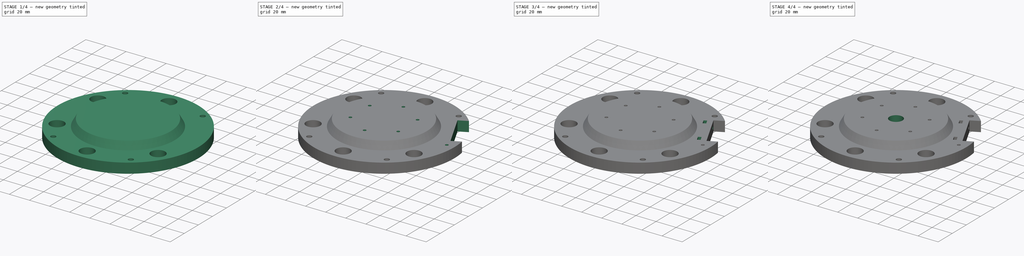
[diagram: build sequence overview — one tinted view per stage of 4, left to right]
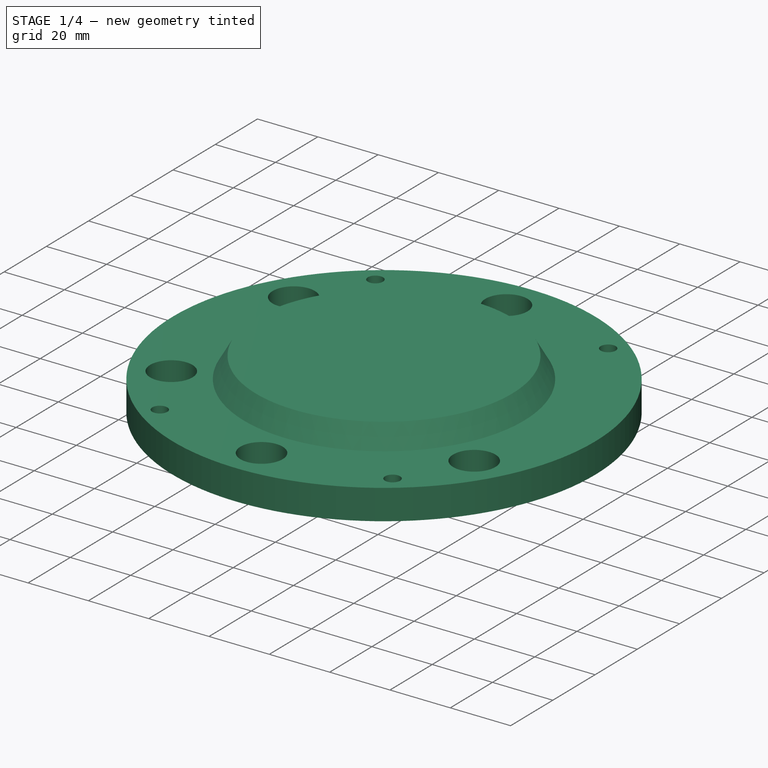
[diagram: stage 1 of 4 — iso view after this stage's code; geometry added in this stage tinted green]
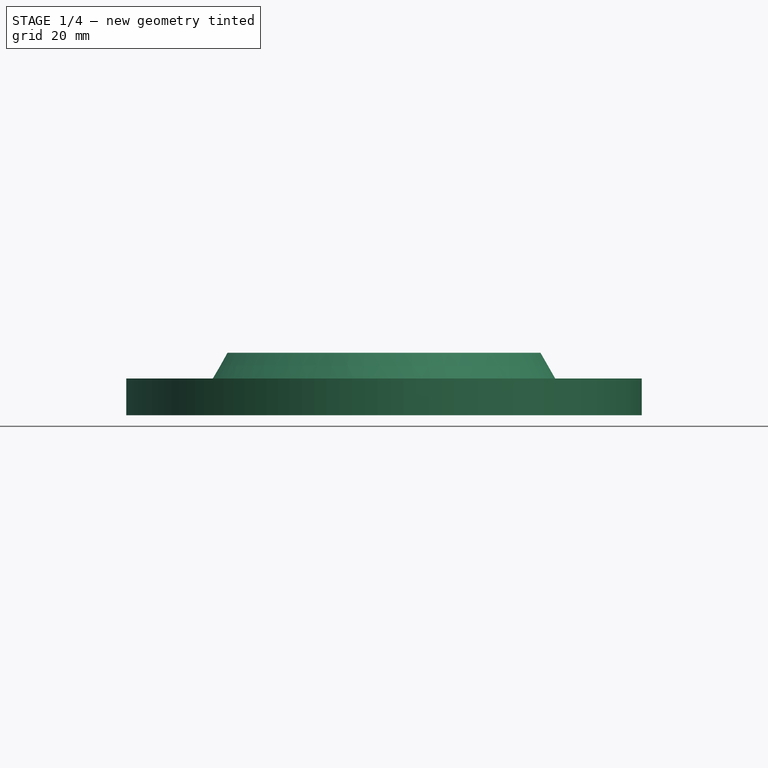
[diagram: stage 1 of 4 — front view after this stage's code; geometry added in this stage tinted green]
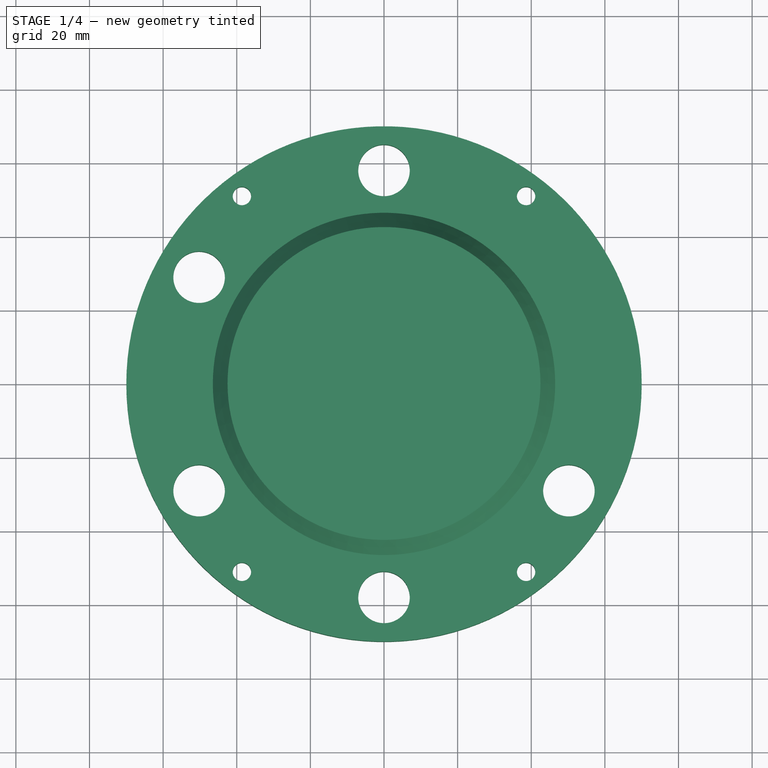
[diagram: stage 1 of 4 — top view after this stage's code; geometry added in this stage tinted green]
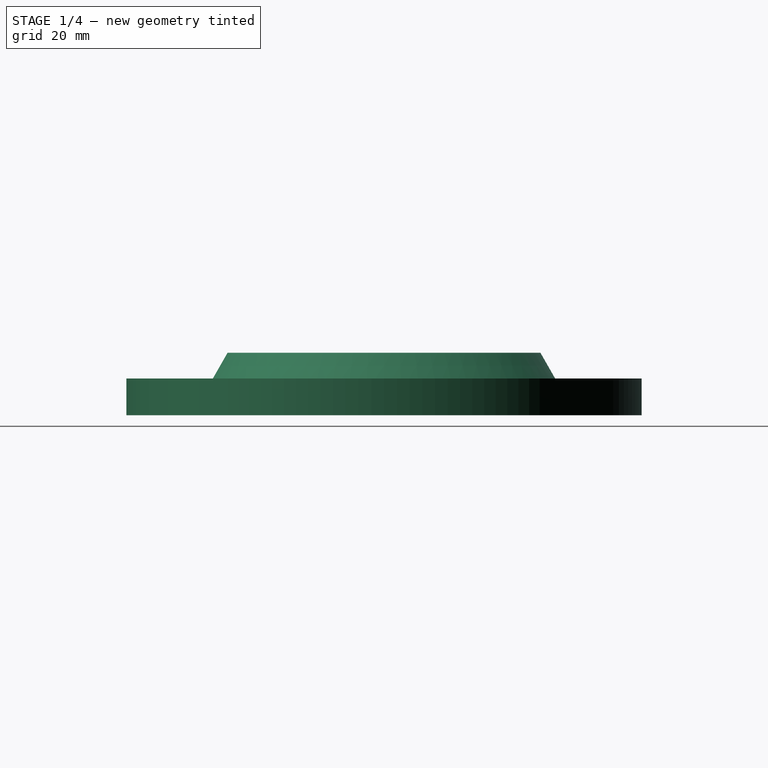
[diagram: stage 1 of 4 — right view after this stage's code; geometry added in this stage tinted green]
FCSTD DOCUMENT  (FreeCAD 0.20R29410 (Git))
Label: #3_BaseTop
License: All rights reserved
LicenseURL: http://en.wikipedia.org/wiki/All_rights_reserved
objects: Sketcher::SketchObject×11, PartDesign::Pocket×9, PartDesign::Pad×1, PartDesign::Revolution×1, PartDesign::PolarPattern×1, PartDesign::Body×1
note: 35 computed .brp shape members not serialized (recipe doc carries the construction recipe); baked Part::Feature solids carry a one-line shape summary decoded from their .brp

FEATURE [Sketcher::SketchObject] Sketch
  FullyConstrained = true
  MapMode = 5
  Support = -> [XY_Plane]
  sketch-geometry (5):
    g0: Circle CenterX=0 CenterY=0 CenterZ=0 NormalX=0 NormalY=0 NormalZ=1 AngleXU=0 Radius=70
    g1: Circle CenterX=-38.6 CenterY=51.05 CenterZ=0 NormalX=0 NormalY=0 NormalZ=1 AngleXU=0 Radius=2.5
    g2: Circle CenterX=38.6 CenterY=51.05 CenterZ=0 NormalX=0 NormalY=0 NormalZ=1 AngleXU=0 Radius=2.5
    g3: Circle CenterX=-38.6 CenterY=-51.05 CenterZ=0 NormalX=0 NormalY=0 NormalZ=1 AngleXU=0 Radius=2.5
    g4: Circle CenterX=38.6 CenterY=-51.05 CenterZ=0 NormalX=0 NormalY=0 NormalZ=1 AngleXU=0 Radius=2.5
  constraints (11):
    c: Coincident(g0,g-1)
    c: Diameter(g0) = 140
    c: Distance(g1,g-2) = 38.6
    c: Distance(g1,g-1) = 51.05
    c: Diameter(g1) = 5
    c: Diameter(g2) = 5
    c: Symmetric(g2,g1,g-2)
    c: Diameter(g3) = 5
    c: Diameter(g4) = 5
    c: Symmetric(g4,g3,g-2)
    c: Symmetric(g3,g1,g-1)
FEATURE [PartDesign::Pad] Pad
  Direction = (0,0,1)
  Length = 10
  Length2 = 10
  Profile = -> Sketch
  ReferenceAxis = -> Sketch [N_Axis]
  Type = 0
FEATURE [Sketcher::SketchObject] Sketch001
  ExternalGeometry = -> [Pad]
  FullyConstrained = true
  MapMode = 5
  Placement = pos=(0,0,0) rot=(1,0,0;1.5708rad)
  Support = -> [XZ_Plane]
  sketch-geometry (4):
    g0: LineSegment StartX=0 StartY=10 StartZ=0 EndX=46.5 EndY=10 EndZ=0
    g1: LineSegment StartX=0 StartY=17 StartZ=0 EndX=42.5 EndY=17 EndZ=0
    g2: LineSegment StartX=42.5 StartY=17 StartZ=0 EndX=46.5 EndY=10 EndZ=0
    g3: LineSegment StartX=0 StartY=10 StartZ=0 EndX=0 EndY=17 EndZ=0
  constraints (12):
    c: PointOnObject(g0,g-2)
    c: Horizontal(g0)
    c: DistanceX(g0,g0) = 46.5
    c: PointOnObject(g1,g-2)
    c: Horizontal(g1)
    c: DistanceX(g1,g1) = 42.5
    c: Coincident(g2,g1)
    c: Coincident(g2,g0)
    c: DistanceY(g0,g1) = 7
    c: PointOnObject(g0,g-3)
    c: Coincident(g3,g0)
    c: Coincident(g3,g1)
FEATURE [PartDesign::Revolution] Revolution
  Angle = 360
  Axis = (0,2e-16,1)
  Base = (0,0,0)
  BaseFeature = -> Pad
  Profile = -> Sketch001
  ReferenceAxis = -> Sketch001 [V_Axis]
  Reversed = true
FEATURE [Sketcher::SketchObject] Sketch002
  ExternalGeometry = -> [Revolution]
  FullyConstrained = true
  MapMode = 5
  Placement = pos=(0,0,10) rot=(0,0,1;0rad)
  Support = -> [Revolution]
  sketch-geometry (9):
    g0: Circle CenterX=0 CenterY=-58 CenterZ=0 NormalX=0 NormalY=0 NormalZ=1 AngleXU=0 Radius=7
    g1: Circle CenterX=-50.2295 CenterY=29 CenterZ=0 NormalX=0 NormalY=0 NormalZ=1 AngleXU=0 Radius=7
    g2: Circle CenterX=-50.2295 CenterY=-29 CenterZ=0 NormalX=0 NormalY=0 NormalZ=1 AngleXU=0 Radius=7
    g3: Circle CenterX=50.2295 CenterY=-29 CenterZ=0 NormalX=0 NormalY=0 NormalZ=1 AngleXU=0 Radius=7
    g4: Circle CenterX=0 CenterY=58 CenterZ=0 NormalX=0 NormalY=0 NormalZ=1 AngleXU=0 Radius=7
    g5: LineSegment StartX=-50.2295 StartY=29 StartZ=0 EndX=0 EndY=58 EndZ=0
    g6: LineSegment StartX=-50.2295 StartY=29 StartZ=0 EndX=-50.2295 EndY=-29 EndZ=0
    g7: LineSegment StartX=-50.2295 StartY=-29 StartZ=0 EndX=0 EndY=-58 EndZ=0
    g8: LineSegment StartX=0 StartY=-58 StartZ=0 EndX=50.2295 EndY=-29 EndZ=0
  constraints (23):
    c: PointOnObject(g0,g-2)
    c: Diameter(g0) = 14
    c: Distance(g0,g-1) = 58
    c: PointOnObject(g4,g-2)
    c: Diameter(g4) = 14
    c: Diameter(g1) = 14
    c: Diameter(g2) = 14
    c: Diameter(g3) = 14
    c: Distance(g-3,g2) = 58
    c: Distance(g1,g-3) = 58
    c: Distance(g4,g-3) = 58
    c: Distance(g-3,g3) = 58
    c: Coincident(g5,g1)
    c: Coincident(g5,g4)
    c: Coincident(g6,g1)
    c: Coincident(g6,g2)
    c: Coincident(g7,g2)
    c: Coincident(g7,g0)
    c: Coincident(g8,g0)
    c: Coincident(g8,g3)
    c: Equal(g5,g6)
    c: Equal(g6,g7)
    c: Equal(g8,g7)
FEATURE [PartDesign::Pocket] Pocket
  BaseFeature = -> Revolution
  Direction = (0,0,-1)
  Length = 11
  Length2 = 5
  Profile = -> Sketch002
  ReferenceAxis = -> Sketch002 [N_Axis]
  Type = 0
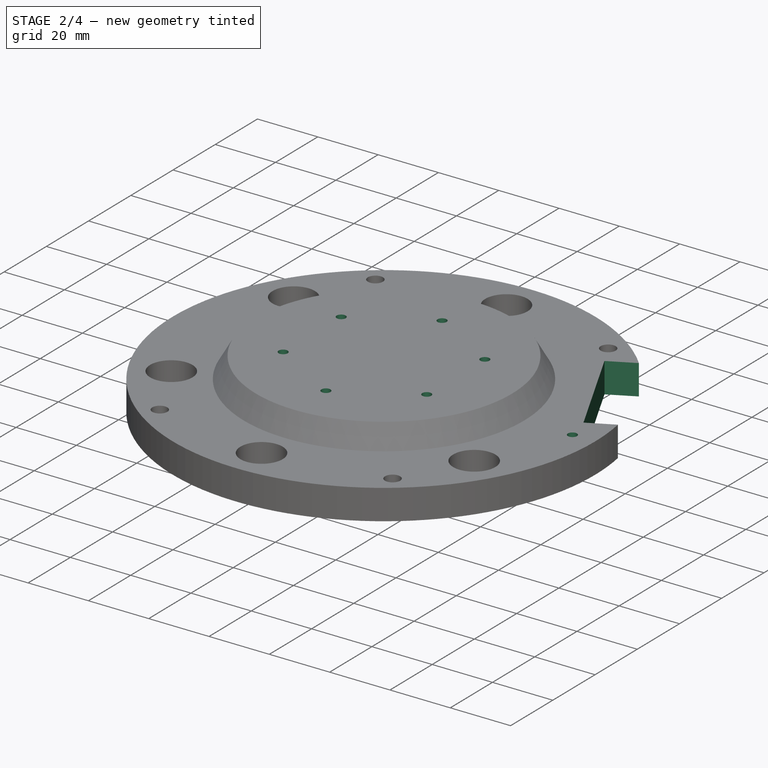
[diagram: stage 2 of 4 — iso view after this stage's code; geometry added in this stage tinted green]
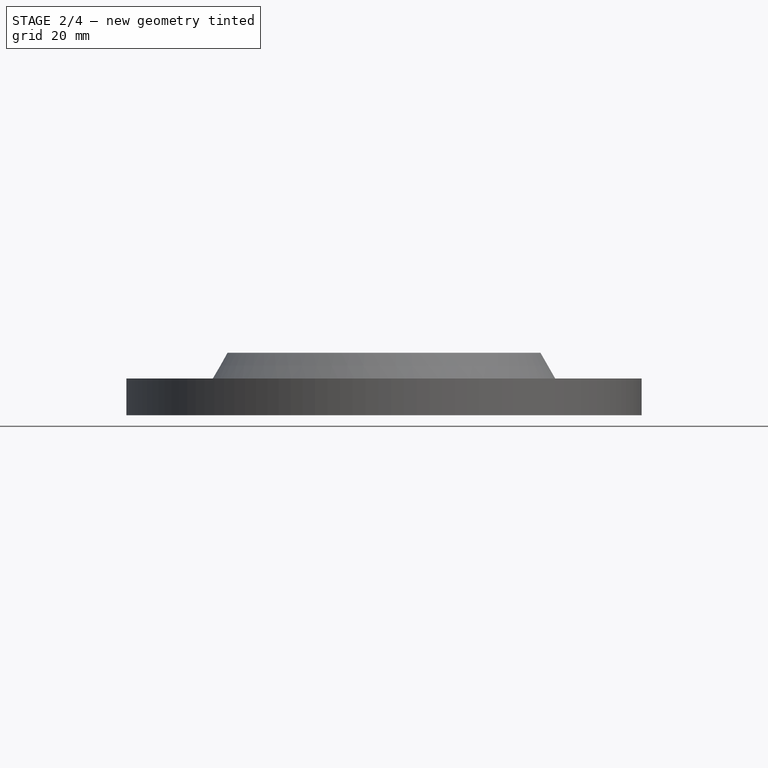
[diagram: stage 2 of 4 — front view after this stage's code; geometry added in this stage tinted green]
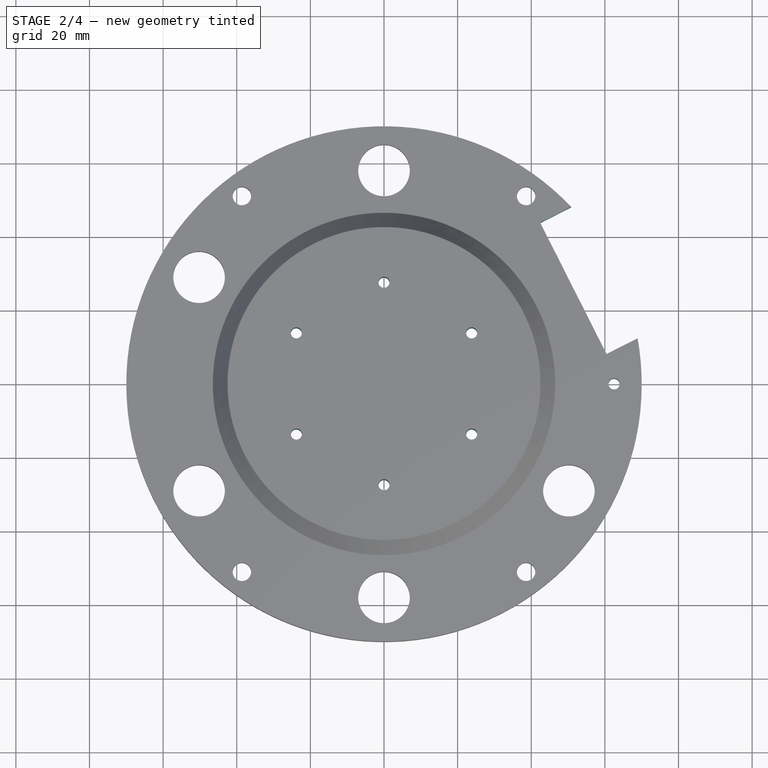
[diagram: stage 2 of 4 — top view after this stage's code; geometry added in this stage tinted green]
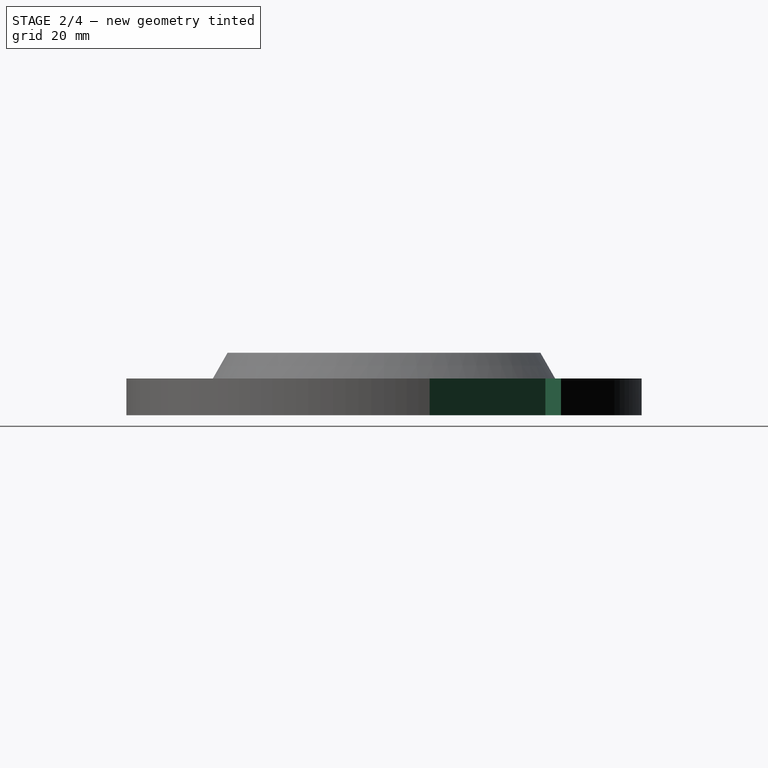
[diagram: stage 2 of 4 — right view after this stage's code; geometry added in this stage tinted green]
FEATURE [Sketcher::SketchObject] Sketch003
  FullyConstrained = true
  MapMode = 5
  Placement = pos=(0,3.7e-15,17) rot=(0,0,1;0rad)
  Support = -> [Pocket]
  sketch-geometry (13):
    g0: LineSegment StartX=23.8157 StartY=-13.75 StartZ=0 EndX=23.8157 EndY=13.75 EndZ=0
    g1: LineSegment StartX=23.8157 StartY=13.75 StartZ=0 EndX=3.6e-15 EndY=27.5 EndZ=0
    g2: LineSegment StartX=3.6e-15 StartY=27.5 StartZ=0 EndX=-23.8157 EndY=13.75 EndZ=0
    g3: LineSegment StartX=-23.8157 StartY=13.75 StartZ=0 EndX=-23.8157 EndY=-13.75 EndZ=0
    g4: LineSegment StartX=-23.8157 StartY=-13.75 StartZ=0 EndX=0 EndY=-27.5 EndZ=0
    g5: LineSegment StartX=0 StartY=-27.5 StartZ=0 EndX=23.8157 EndY=-13.75 EndZ=0
    g6: Circle CenterX=0 CenterY=0 CenterZ=0 NormalX=0 NormalY=0 NormalZ=1 AngleXU=0 Radius=27.5
    g7: Circle CenterX=3.6e-15 CenterY=27.5 CenterZ=0 NormalX=0 NormalY=0 NormalZ=1 AngleXU=0 Radius=1.5
    g8: Circle CenterX=23.8157 CenterY=13.75 CenterZ=0 NormalX=0 NormalY=0 NormalZ=1 AngleXU=0 Radius=1.5
    g9: Circle CenterX=23.8157 CenterY=-13.75 CenterZ=0 NormalX=0 NormalY=0 NormalZ=1 AngleXU=0 Radius=1.5
    g10: Circle CenterX=0 CenterY=-27.5 CenterZ=0 NormalX=0 NormalY=0 NormalZ=1 AngleXU=0 Radius=1.5
    g11: Circle CenterX=-23.8157 CenterY=-13.75 CenterZ=0 NormalX=0 NormalY=0 NormalZ=1 AngleXU=0 Radius=1.5
    g12: Circle CenterX=-23.8157 CenterY=13.75 CenterZ=0 NormalX=0 NormalY=0 NormalZ=1 AngleXU=0 Radius=1.5
  constraints (28):
    c: Coincident(g0,g1)
    c: Coincident(g1,g2)
    c: Coincident(g2,g3)
    c: Coincident(g3,g4)
    c: Coincident(g4,g5)
    c: Coincident(g5,g0)
    c: Equal(g0, g1-g5) x5
    c: PointOnObject(g0,g6)
    c: PointOnObject(g1,g6)
    c: PointOnObject(g2,g6)
    c: PointOnObject(g3,g6)
    c: PointOnObject(g4,g6)
    c: PointOnObject(g5,g6)
    c: Coincident(g6,g-1)
    c: Diameter(g6) = 55
    c: PointOnObject(g4,g-2)
    c: Coincident(g7,g1)
    c: Coincident(g8,g0)
    c: Coincident(g9,g0)
    c: Coincident(g10,g4)
    c: Coincident(g11,g3)
    c: Coincident(g12,g2)
    c: Diameter(g7) = 3
    c: Diameter(g12) = 3
    c: Diameter(g8) = 3
    c: Diameter(g9) = 3
    c: Diameter(g10) = 3
    c: Diameter(g11) = 3
FEATURE [PartDesign::Pocket] Pocket001
  BaseFeature = -> Pocket
  Direction = (0,-2e-16,-1)
  Length = 20
  Length2 = 5
  Profile = -> Sketch003
  ReferenceAxis = -> Sketch003 [N_Axis]
  Type = 0
FEATURE [Sketcher::SketchObject] Sketch004
  ExternalGeometry = -> [Pocket001]
  FullyConstrained = true
  MapMode = 5
  Placement = pos=(0,0,10) rot=(0,0,1;0rad)
  Support = -> [Pocket001]
  sketch-geometry (5):
    g0: LineSegment StartX=0 StartY=0 StartZ=0 EndX=51.4397 EndY=25.9841 EndZ=0
    g1: LineSegment StartX=60.4573 StartY=8.13236 StartZ=0 EndX=68.894 EndY=12.3941 EndZ=0
    g2: LineSegment StartX=42.4222 StartY=43.8358 StartZ=0 EndX=50.8589 EndY=48.0975 EndZ=0
    g3: ArcOfCircle CenterX=0 CenterY=0 CenterZ=0 NormalX=0 NormalY=0 NormalZ=1 AngleXU=0 Radius=70 StartAngle=0.177997 EndAngle=0.7575
    g4: LineSegment StartX=42.4222 StartY=43.8358 StartZ=0 EndX=60.4573 EndY=8.13236 EndZ=0
  constraints (15):
    c: Coincident(g0,g-1)
    c: Distance(g0) = 57.63
    c: Angle(g-1,g0) = 0.467748
    c: PointOnObject(g2,g-3)
    c: PointOnObject(g1,g-3)
    c: Coincident(g3,g0)
    c: Coincident(g3,g2)
    c: PointOnObject(g3,g1)
    c: Distance(g1,g2) = 40
    c: Coincident(g4,g2)
    c: Coincident(g4,g1)
    c: Perpendicular(g4,g0)
    c: Perpendicular(g4,g1)
    c: Perpendicular(g4,g2)
    c: Symmetric(g1,g2,g0)
FEATURE [PartDesign::Pocket] Pocket002
  BaseFeature = -> Pocket001
  Direction = (0,0,-1)
  Length = 12
  Length2 = 5
  Profile = -> Sketch004
  ReferenceAxis = -> Sketch004 [N_Axis]
  Type = 0
FEATURE [Sketcher::SketchObject] Sketch005
  FullyConstrained = true
  MapMode = 5
  Placement = pos=(0,0,10) rot=(0,0,1;0rad)
  Support = -> [Pocket002]
  sketch-geometry (1):
    g0: Circle CenterX=62.5 CenterY=0 CenterZ=0 NormalX=0 NormalY=0 NormalZ=1 AngleXU=0 Radius=1.5
  constraints (3):
    c: PointOnObject(g0,g-1)
    c: Distance(g-1,g0) = 62.5
    c: Diameter(g0) = 3
FEATURE [PartDesign::Pocket] Pocket003
  BaseFeature = -> Pocket002
  Direction = (0,0,-1)
  Length = 12
  Length2 = 5
  Profile = -> Sketch005
  ReferenceAxis = -> Sketch005 [N_Axis]
  Type = 0
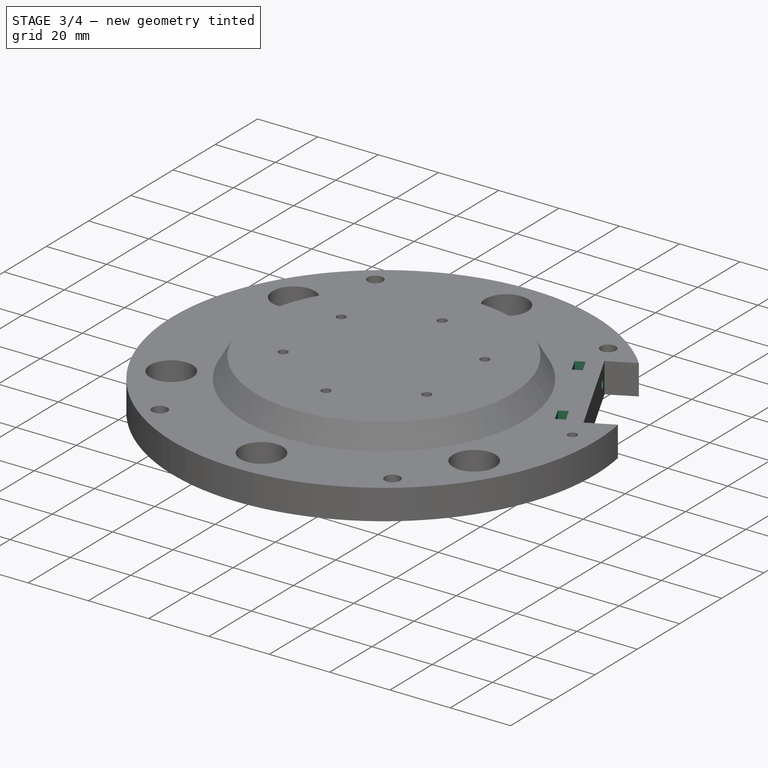
[diagram: stage 3 of 4 — iso view after this stage's code; geometry added in this stage tinted green]
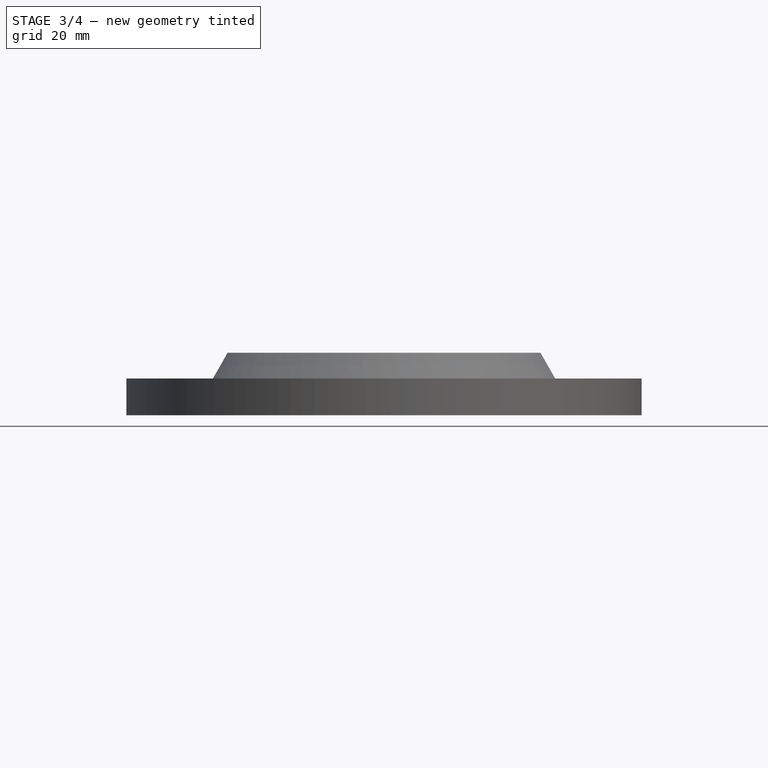
[diagram: stage 3 of 4 — front view after this stage's code; geometry added in this stage tinted green]
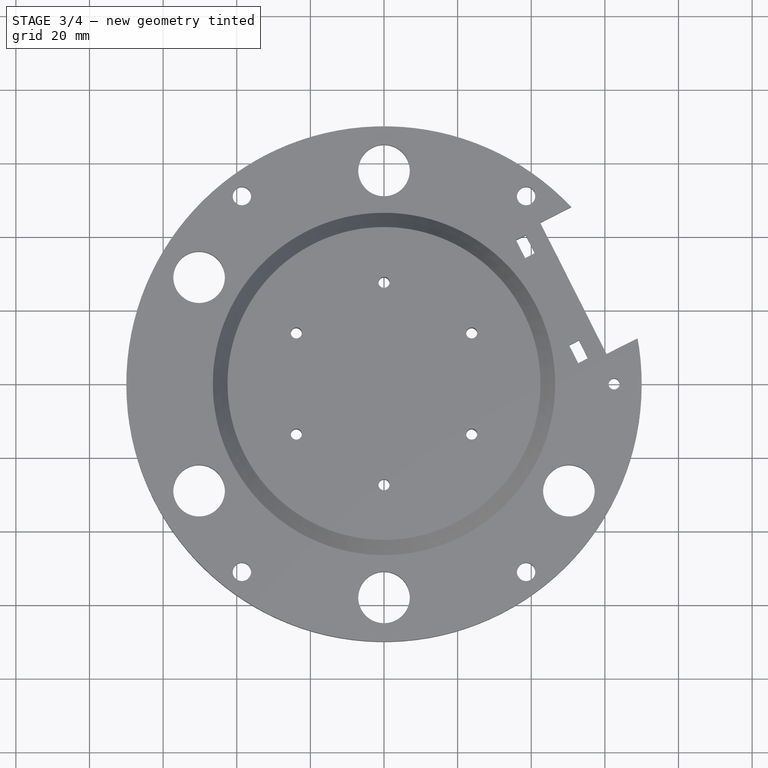
[diagram: stage 3 of 4 — top view after this stage's code; geometry added in this stage tinted green]
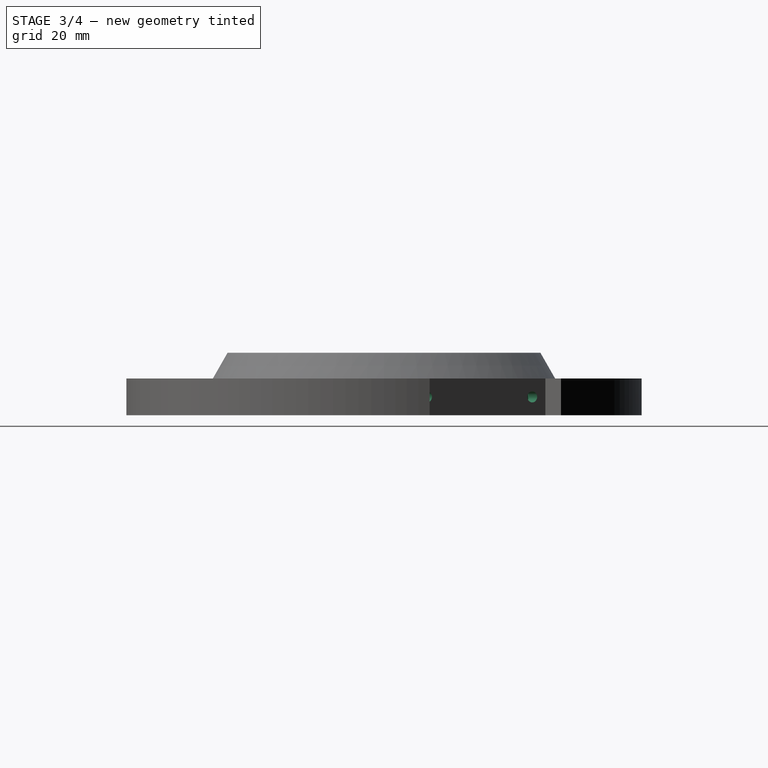
[diagram: stage 3 of 4 — right view after this stage's code; geometry added in this stage tinted green]
FEATURE [Sketcher::SketchObject] Sketch006
  ExternalGeometry = -> [Pocket003]
  FullyConstrained = true
  MapMode = 5
  Placement = pos=(0,0,10) rot=(0,0,1;0rad)
  Support = -> [Pocket003]
  sketch-geometry (10):
    g0: LineSegment StartX=35.8451 StartY=39.113 StartZ=0 EndX=38.5228 EndY=40.4657 EndZ=0
    g1: LineSegment StartX=38.5228 StartY=40.4657 StartZ=0 EndX=41.0027 EndY=35.5564 EndZ=0
    g2: LineSegment StartX=41.0027 StartY=35.5564 StartZ=0 EndX=38.3249 EndY=34.2038 EndZ=0
    g3: LineSegment StartX=38.3249 StartY=34.2038 StartZ=0 EndX=35.8451 EndY=39.113 EndZ=0
    g4: LineSegment StartX=50.2732 StartY=10.5503 StartZ=0 EndX=52.9509 EndY=11.9029 EndZ=0
    g5: LineSegment StartX=52.9509 StartY=11.9029 StartZ=0 EndX=55.4307 EndY=6.9937 EndZ=0
    g6: LineSegment StartX=55.4307 StartY=6.9937 StartZ=0 EndX=52.753 EndY=5.64107 EndZ=0
    g7: LineSegment StartX=52.753 StartY=5.64107 StartZ=0 EndX=50.2732 EndY=10.5503 EndZ=0
    g8: LineSegment StartX=38.5228 StartY=40.4657 StartZ=0 EndX=42.4222 EndY=43.8358 EndZ=0
    g9: LineSegment StartX=55.4307 StartY=6.9937 StartZ=0 EndX=60.4573 EndY=8.13236 EndZ=0
  constraints (29):
    c: Coincident(g0,g1)
    c: Coincident(g1,g2)
    c: Coincident(g2,g3)
    c: Coincident(g3,g0)
    c: Coincident(g4,g5)
    c: Coincident(g5,g6)
    c: Coincident(g6,g7)
    c: Coincident(g7,g4)
    c: Distance(g5) = 5.5
    c: Distance(g1) = 5.5
    c: Distance(g0) = 3
    c: Distance(g4) = 3
    c: Parallel(g1,g-3)
    c: Parallel(g5,g-3)
    c: Parallel(g3,g1)
    c: Parallel(g0,g2)
    c: Parallel(g4,g6)
    c: Parallel(g7,g5)
    c: Perpendicular(g5,g4)
    c: Perpendicular(g1,g2)
    c: Distance(g1,g4) = 26.5
    c: Distance(g-3) = 40
    c: Distance(g5,g-3) = 5
    c: Distance(g1,g-3) = 5
    c: Coincident(g8,g0)
    c: Coincident(g8,g-3)
    c: Coincident(g9,g5)
    c: Coincident(g9,g-3)
    c: Equal(g9,g8)
FEATURE [PartDesign::Pocket] Pocket004
  BaseFeature = -> Pocket003
  Direction = (0,0,-1)
  Length = 12
  Length2 = 5
  Profile = -> Sketch006
  ReferenceAxis = -> Sketch006 [N_Axis]
  Type = 0
FEATURE [Sketcher::SketchObject] Sketch007
  ExternalGeometry = -> [Pocket004]
  FullyConstrained = true
  MapMode = 5
  Placement = pos=(51.4397,25.9841,0) rot=(0.398905,0.648411,0.648411;2.38247rad)
  Support = -> [Pocket004]
  sketch-geometry (3):
    g0: LineSegment StartX=-16 StartY=5 StartZ=0 EndX=16 EndY=5 EndZ=0
    g1: Circle CenterX=-16 CenterY=5 CenterZ=0 NormalX=0 NormalY=0 NormalZ=1 AngleXU=0 Radius=1.5
    g2: Circle CenterX=16 CenterY=5 CenterZ=0 NormalX=0 NormalY=0 NormalZ=1 AngleXU=0 Radius=1.5
  constraints (7):
    c: Distance(g0) = 32
    c: Coincident(g1,g0)
    c: Coincident(g2,g0)
    c: Diameter(g2) = 3
    c: Diameter(g1) = 3
    c: Distance(g-1,g0) = 5
    c: Symmetric(g2,g1,g-2)
FEATURE [PartDesign::Pocket] Pocket005
  BaseFeature = -> Pocket004
  Direction = (-0.892586,-0.450878,0)
  Length = 20
  Length2 = 5
  Profile = -> Sketch007
  ReferenceAxis = -> Sketch007 [N_Axis]
  Type = 0
FEATURE [Sketcher::SketchObject] Sketch008
  ExternalGeometry = -> [Pocket005]
  FullyConstrained = true
  MapMode = 5
  Placement = pos=(0,0,0) rot=(1,0,0;3.14159rad)
  Support = -> [Pocket005]
  sketch-geometry (7):
    g0: LineSegment StartX=-1.55885 StartY=24.8 StartZ=0 EndX=1.55885 EndY=24.8 EndZ=0
    g1: LineSegment StartX=1.55885 StartY=24.8 StartZ=0 EndX=3.11769 EndY=27.5 EndZ=0
    g2: LineSegment StartX=3.11769 StartY=27.5 StartZ=0 EndX=1.55885 EndY=30.2 EndZ=0
    g3: LineSegment StartX=1.55885 StartY=30.2 StartZ=0 EndX=-1.55885 EndY=30.2 EndZ=0
    g4: LineSegment StartX=-1.55885 StartY=30.2 StartZ=0 EndX=-3.11769 EndY=27.5 EndZ=0
    g5: LineSegment StartX=-3.11769 StartY=27.5 StartZ=0 EndX=-1.55885 EndY=24.8 EndZ=0
    g6: Circle CenterX=0 CenterY=27.5 CenterZ=0 NormalX=0 NormalY=0 NormalZ=1 AngleXU=0 Radius=3.11769
  constraints (16):
    c: Coincident(g0,g1)
    c: Coincident(g1,g2)
    c: Coincident(g2,g3)
    c: Coincident(g3,g4)
    c: Coincident(g4,g5)
    c: Coincident(g5,g0)
    c: Equal(g0, g1-g5) x5
    c: PointOnObject(g0,g6)
    c: PointOnObject(g1,g6)
    c: PointOnObject(g2,g6)
    c: PointOnObject(g3,g6)
    c: PointOnObject(g4,g6)
    c: PointOnObject(g5,g6)
    c: Coincident(g6,g-3)
    c: Distance(g0,g2) = 5.4
    c: Parallel(g0,g-1)
FEATURE [PartDesign::Pocket] Pocket006
  BaseFeature = -> Pocket005
  Direction = (0,0,1)
  Length = 5
  Length2 = 5
  Profile = -> Sketch008
  ReferenceAxis = -> Sketch008 [N_Axis]
  Type = 0
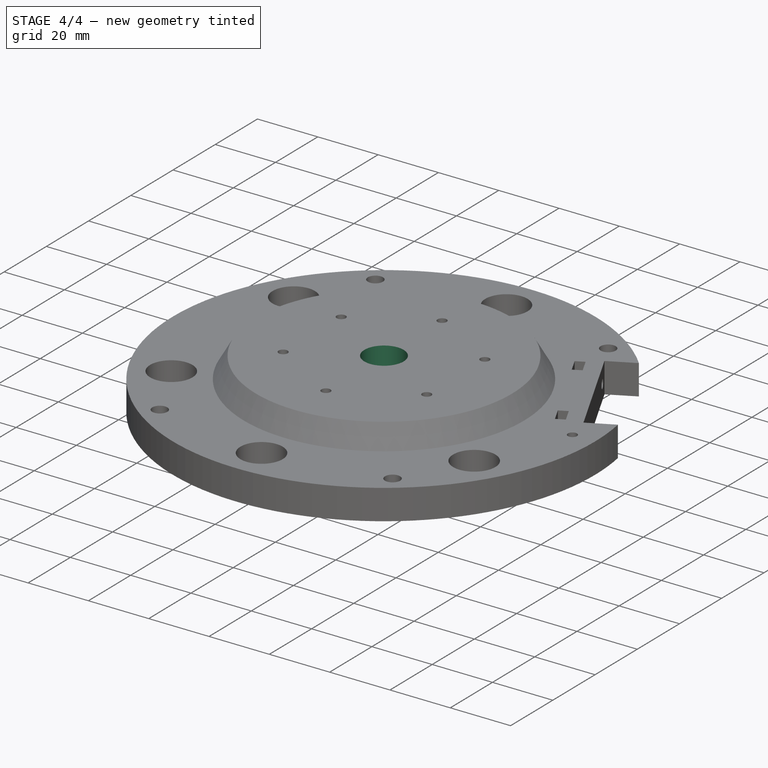
[diagram: stage 4 of 4 — iso view after this stage's code; geometry added in this stage tinted green]
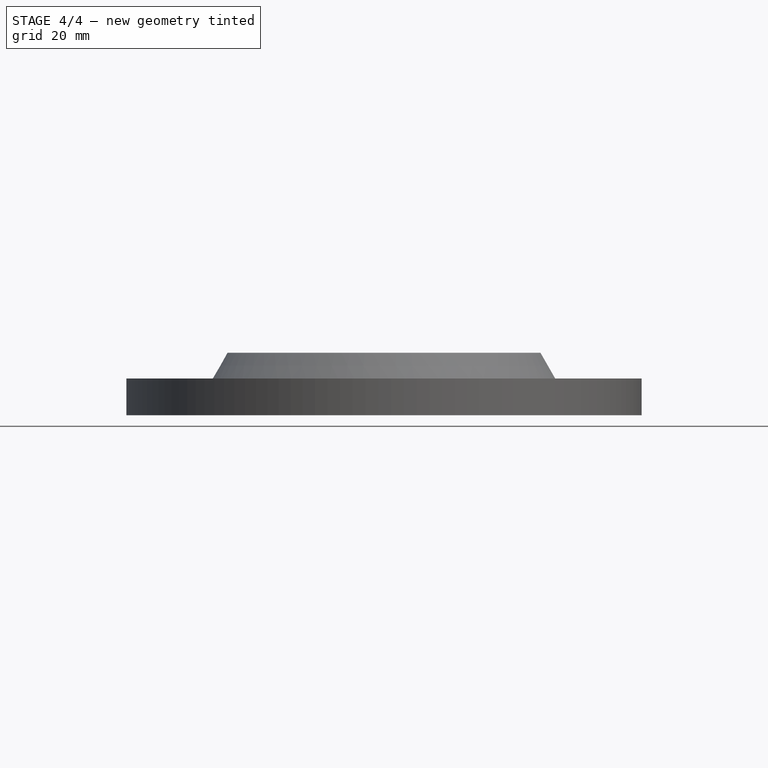
[diagram: stage 4 of 4 — front view after this stage's code; geometry added in this stage tinted green]
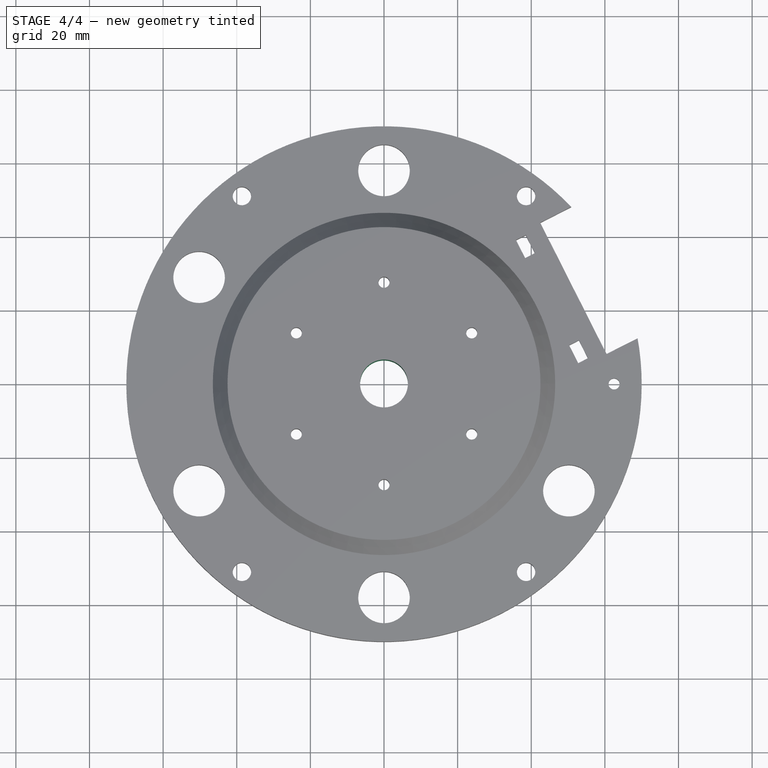
[diagram: stage 4 of 4 — top view after this stage's code; geometry added in this stage tinted green]
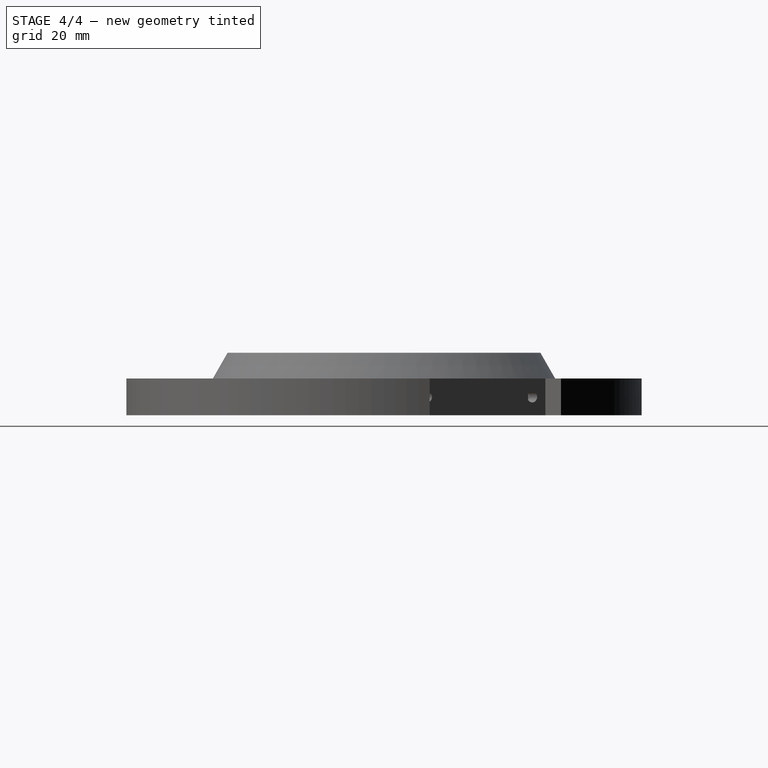
[diagram: stage 4 of 4 — right view after this stage's code; geometry added in this stage tinted green]
FEATURE [PartDesign::PolarPattern] PolarPattern
  Angle = 360
  Axis = -> Sketch008 [N_Axis]
  BaseFeature = -> Pocket006
  Occurrences = 6
  Originals = -> [Pocket006]
FEATURE [Sketcher::SketchObject] Sketch009
  FullyConstrained = true
  MapMode = 5
  Placement = pos=(0,3.7e-15,17) rot=(0,0,1;0rad)
  Support = -> [PolarPattern]
  sketch-geometry (1):
    g0: Circle CenterX=0 CenterY=0 CenterZ=0 NormalX=0 NormalY=0 NormalZ=1 AngleXU=0 Radius=6.5
  constraints (2):
    c: Coincident(g0,g-1)
    c: Diameter(g0) = 13
FEATURE [PartDesign::Pocket] Pocket007
  BaseFeature = -> PolarPattern
  Direction = (0,-2e-16,-1)
  Length = 20
  Length2 = 5
  Profile = -> Sketch009
  ReferenceAxis = -> Sketch009 [N_Axis]
  Type = 0
FEATURE [Sketcher::SketchObject] Sketch010
  ExternalGeometry = -> [Pocket007]
  FullyConstrained = true
  MapMode = 5
  Placement = pos=(0,0,0) rot=(1,0,0;3.14159rad)
  Support = -> [Pocket007]
  sketch-geometry (7):
    g0: LineSegment StartX=65.2 StartY=-1.55885 StartZ=0 EndX=65.2 EndY=1.55885 EndZ=0
    g1: LineSegment StartX=65.2 StartY=1.55885 StartZ=0 EndX=62.5 EndY=3.11769 EndZ=0
    g2: LineSegment StartX=62.5 StartY=3.11769 StartZ=0 EndX=59.8 EndY=1.55885 EndZ=0
    g3: LineSegment StartX=59.8 StartY=1.55885 StartZ=0 EndX=59.8 EndY=-1.55885 EndZ=0
    g4: LineSegment StartX=59.8 StartY=-1.55885 StartZ=0 EndX=62.5 EndY=-3.11769 EndZ=0
    g5: LineSegment StartX=62.5 StartY=-3.11769 StartZ=0 EndX=65.2 EndY=-1.55885 EndZ=0
    g6: Circle CenterX=62.5 CenterY=0 CenterZ=0 NormalX=0 NormalY=0 NormalZ=1 AngleXU=0 Radius=3.11769
  constraints (16):
    c: Coincident(g0,g1)
    c: Coincident(g1,g2)
    c: Coincident(g2,g3)
    c: Coincident(g3,g4)
    c: Coincident(g4,g5)
    c: Coincident(g5,g0)
    c: Equal(g0, g1-g5) x5
    c: PointOnObject(g0,g6)
    c: PointOnObject(g1,g6)
    c: PointOnObject(g2,g6)
    c: PointOnObject(g3,g6)
    c: PointOnObject(g4,g6)
    c: PointOnObject(g5,g6)
    c: Coincident(g6,g-3)
    c: Distance(g2,g0) = 5.4
    c: Perpendicular(g-1,g3)
FEATURE [PartDesign::Pocket] Pocket008
  BaseFeature = -> Pocket007
  Direction = (0,0,1)
  Length = 4
  Length2 = 5
  Profile = -> Sketch010
  ReferenceAxis = -> Sketch010 [N_Axis]
  Type = 0
FEATURE [PartDesign::Body] Body
  Group = -> [Sketch,Pad,Sketch001,Revolution,Sketch002,Pocket,Sketch003,Pocket001,Sketch004,Pocket002,Sketch005,Pocket003,Sketch006,Pocket004,Sketch007,Pocket005,Sketch008,Pocket006,PolarPattern,Sketch009,Pocket007,Sketch010,Pocket008]
  Origin = -> Origin
  Tip = -> Pocket008
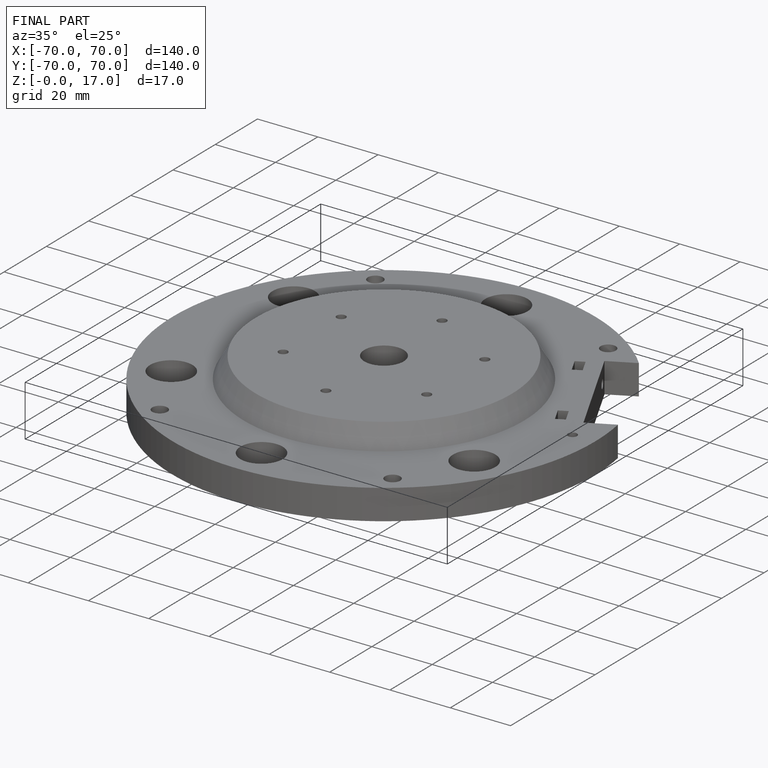
[diagram: finished part — iso view with bounding-box wireframe]
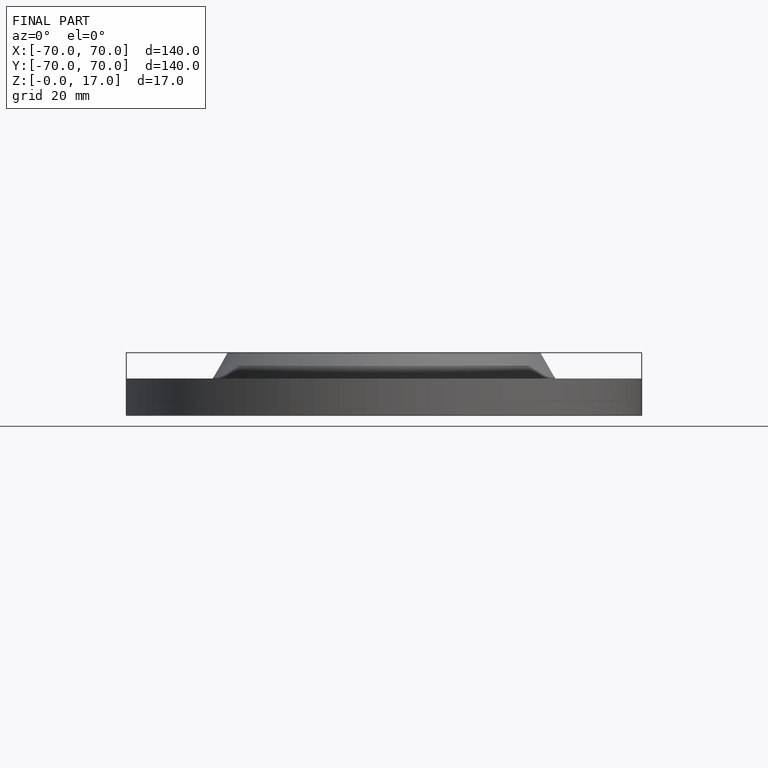
[diagram: finished part — front view with bounding-box wireframe]
